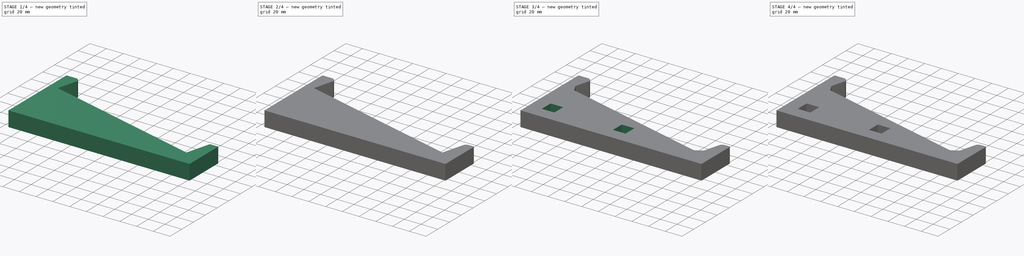
[diagram: build sequence overview — one tinted view per stage of 4, left to right]
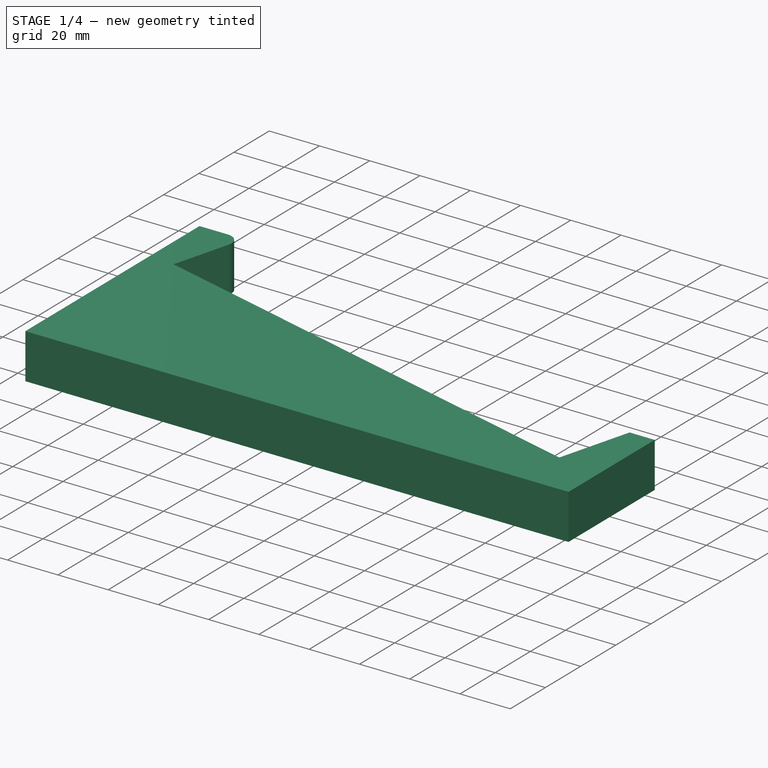
[diagram: stage 1 of 4 — iso view after this stage's code; geometry added in this stage tinted green]
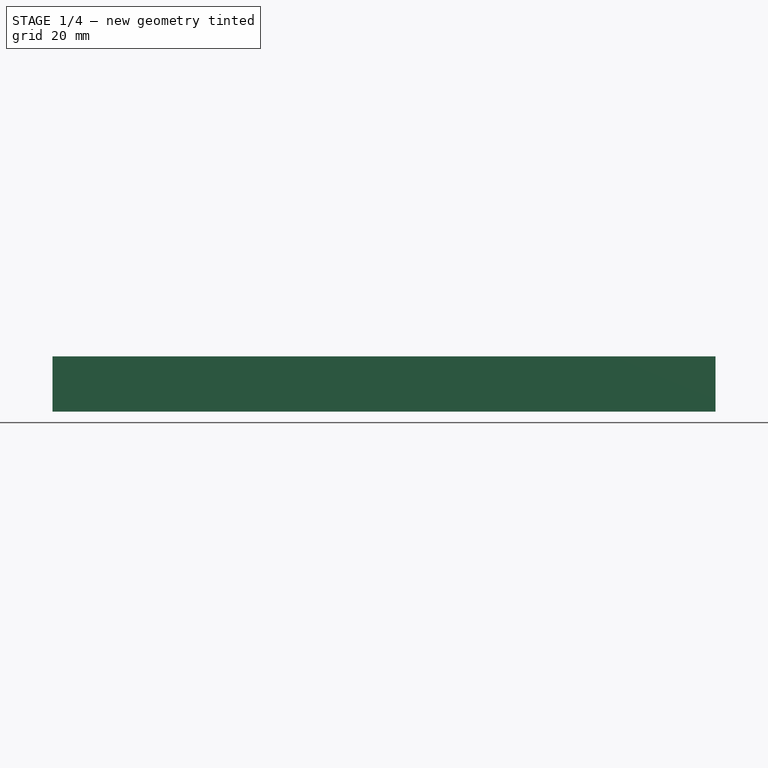
[diagram: stage 1 of 4 — front view after this stage's code; geometry added in this stage tinted green]
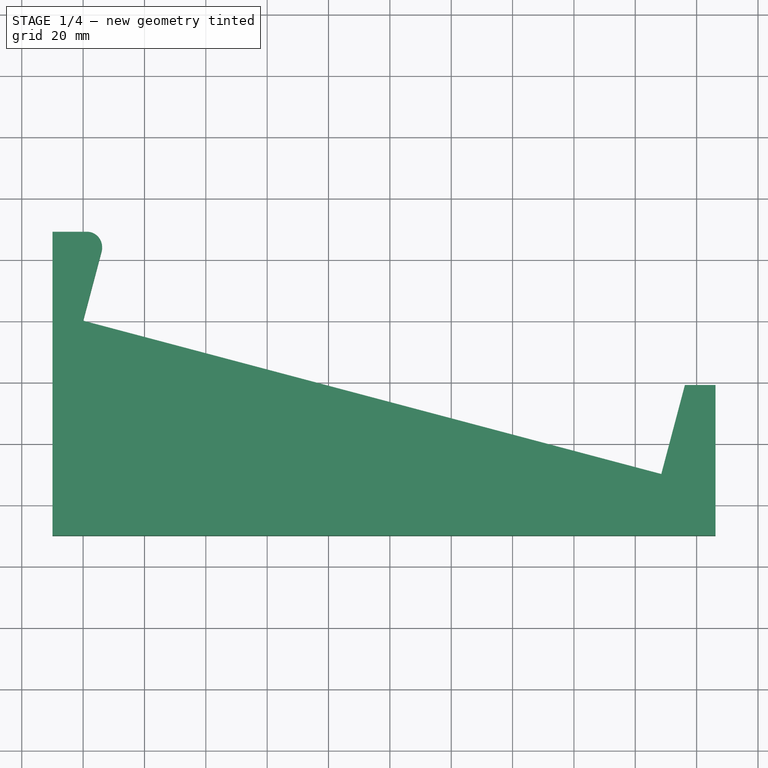
[diagram: stage 1 of 4 — top view after this stage's code; geometry added in this stage tinted green]
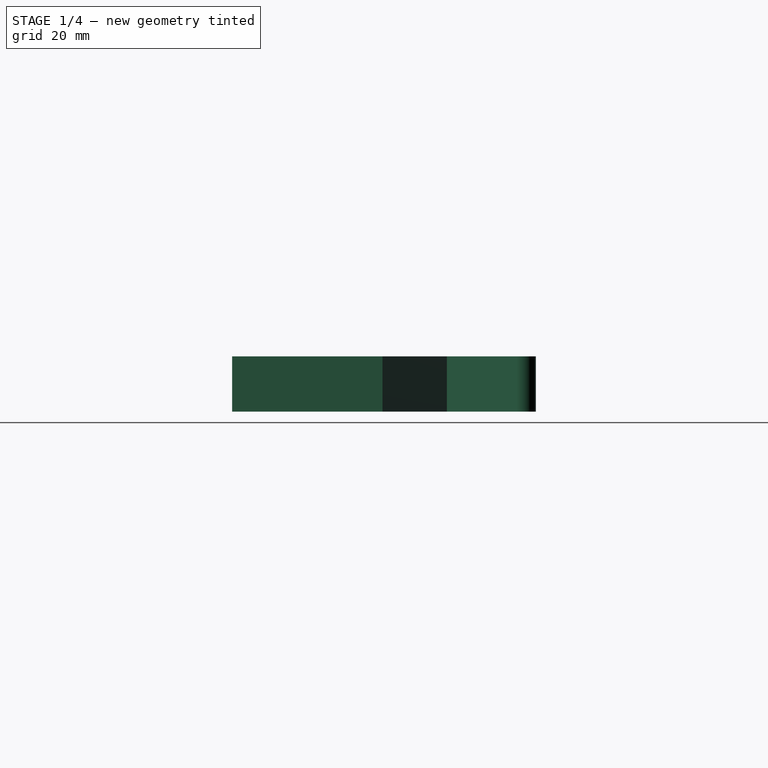
[diagram: stage 1 of 4 — right view after this stage's code; geometry added in this stage tinted green]
FCSTD DOCUMENT  (FreeCAD 0.14R3637 (Git))
Label: seitenwand_rechts
License: CC-BY 3.0
LicenseURL: http://creativecommons.org/licenses/by/3.0/
objects: Sketcher::SketchObject×4, PartDesign::Fillet×4, PartDesign::Pocket×3, PartDesign::Chamfer×2, PartDesign::Pad×1
note: 18 computed .brp shape members not serialized (recipe doc carries the construction recipe); baked Part::Feature solids carry a one-line shape summary decoded from their .brp

FEATURE [Sketcher::SketchObject] Sketch  label="seitensicht"
  sketch-geometry (8):
    g0: LineSegment StartX=206.173 StartY=-21.003 StartZ=0 EndX=196.173 EndY=-21.003 EndZ=0
    g1: LineSegment StartX=196.173 StartY=-21.003 StartZ=0 EndX=188.481 EndY=-50 EndZ=0
    g2: LineSegment StartX=188.481 StartY=-50 StartZ=0 EndX=0 EndY=0 EndZ=0
    g3: LineSegment StartX=0 StartY=0 StartZ=0 EndX=7.69231 EndY=28.997 EndZ=0
    g4: LineSegment StartX=7.69231 StartY=28.997 StartZ=0 EndX=-10 EndY=28.997 EndZ=0
    g5: LineSegment StartX=-10 StartY=28.997 StartZ=0 EndX=-10 EndY=-69.999 EndZ=0
    g6: LineSegment StartX=-10 StartY=-69.999 StartZ=0 EndX=206.173 EndY=-69.999 EndZ=0
    g7: LineSegment StartX=206.173 StartY=-69.999 StartZ=0 EndX=206.173 EndY=-21.003 EndZ=0
  constraints (21):
    c: Coincident(g0,g1)
    c: Coincident(g1,g2)
    c: Coincident(g2,g-1)
    c: Coincident(g2,g3)
    c: Coincident(g3,g4)
    c: Coincident(g4,g5)
    c: Vertical(g5)
    c: Coincident(g5,g6)
    c: Horizontal(g6)
    c: Coincident(g6,g7)
    c: Coincident(g7,g0)
    c: Perpendicular(g7,g6)
    c: Perpendicular(g7,g0)
    c: Perpendicular(g1,g2)
    c: Perpendicular(g4,g5)
    c: Distance(g0) = 10
    c: Distance(g1) = 30
    c: Distance(g3) = 30
    c: Perpendicular(g3,g2)
    c: DistanceY(g-1,g1) = -50
    c: Distance(g2) = 195  'depth'
FEATURE [PartDesign::Pad] Pad
  Length = 18
  Length2 = 100
  Sketch = -> Sketch
  Type = 0
FEATURE [PartDesign::Fillet] Fillet
  Base = -> Pad [Edge11]
  Radius = 5
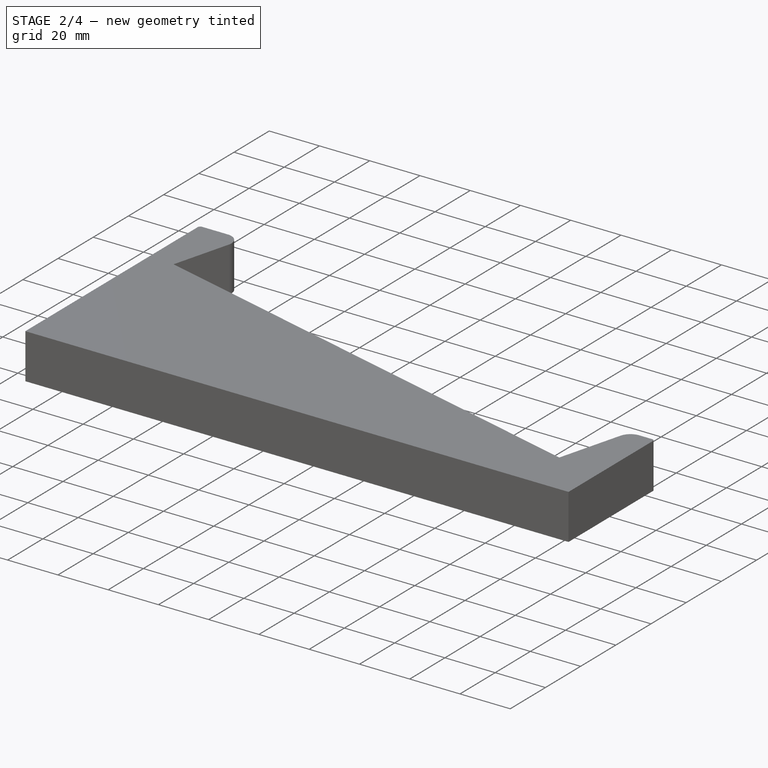
[diagram: stage 2 of 4 — iso view after this stage's code; geometry added in this stage tinted green]
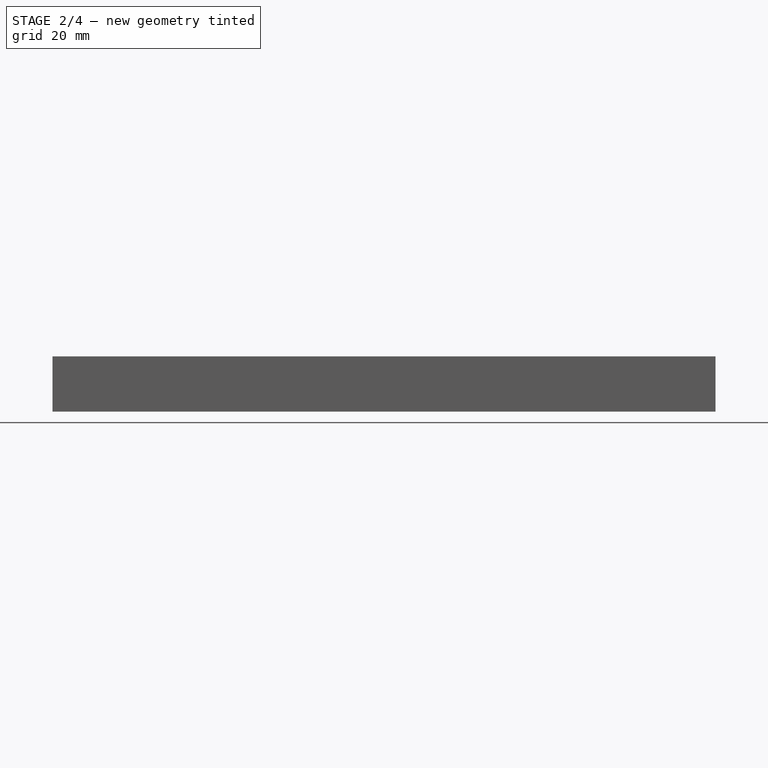
[diagram: stage 2 of 4 — front view after this stage's code; geometry added in this stage tinted green]
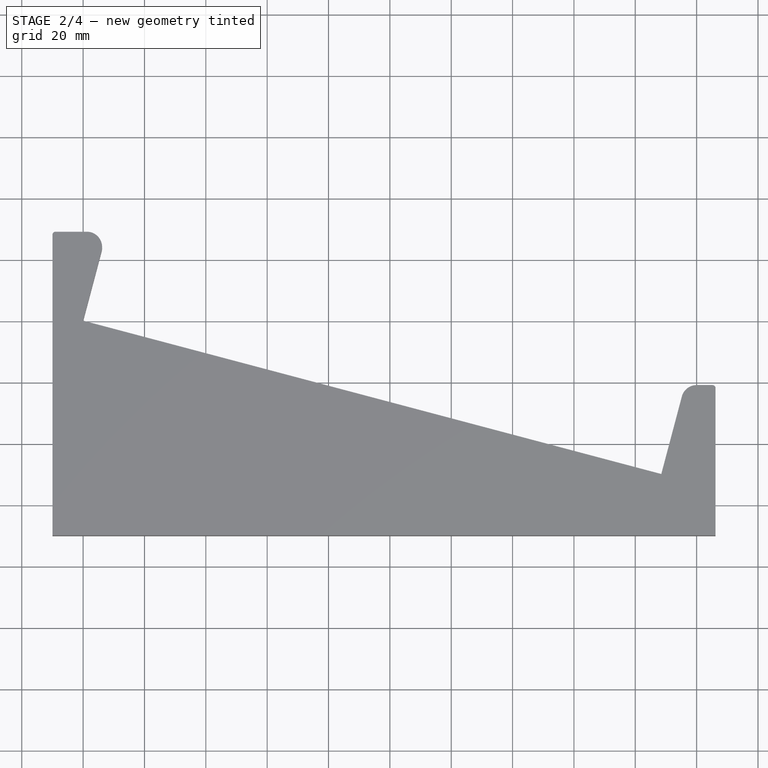
[diagram: stage 2 of 4 — top view after this stage's code; geometry added in this stage tinted green]
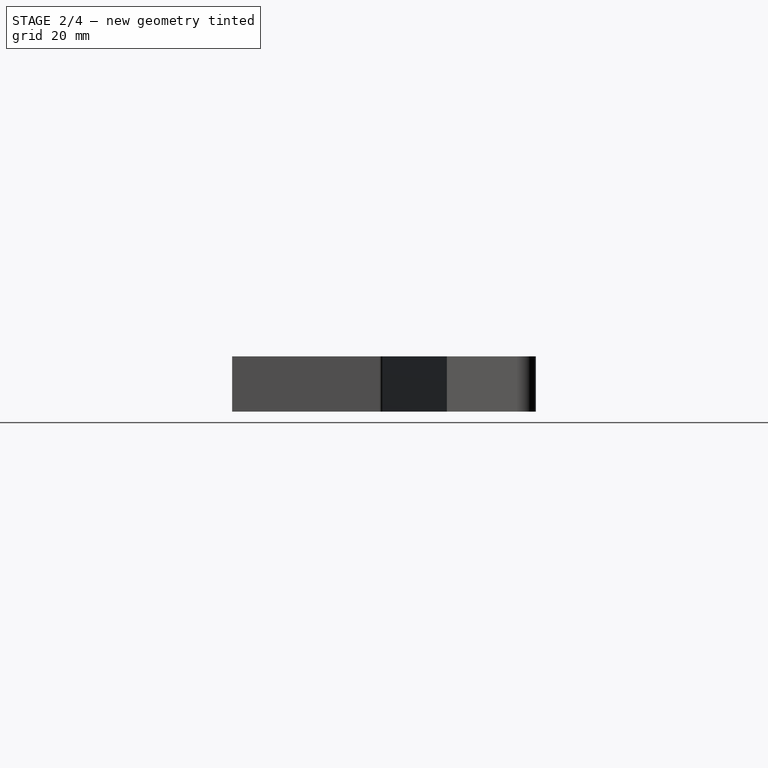
[diagram: stage 2 of 4 — right view after this stage's code; geometry added in this stage tinted green]
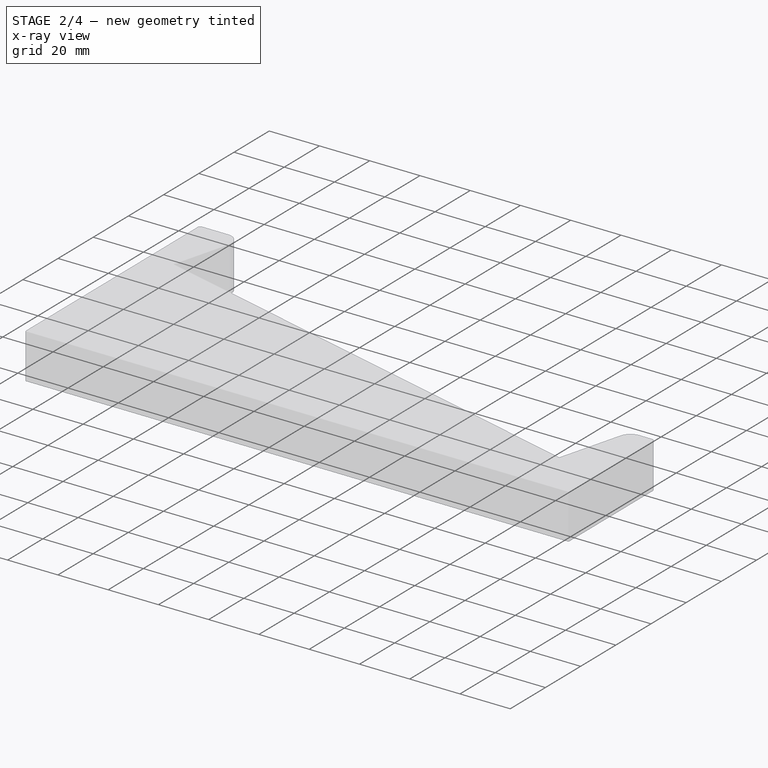
[diagram: stage 2 of 4 — x-ray composite at the iso view; earlier geometry ghosted, this stage's added geometry solid]
FEATURE [PartDesign::Fillet] Fillet001
  Base = -> Fillet [Edge24]
  Radius = 5
FEATURE [PartDesign::Fillet] Fillet002
  Base = -> Fillet001 [Edge18]
  Radius = 1
FEATURE [PartDesign::Fillet] Fillet003  label="Seitenwand"
  Base = -> Fillet002 [Edge27]
  Radius = 1
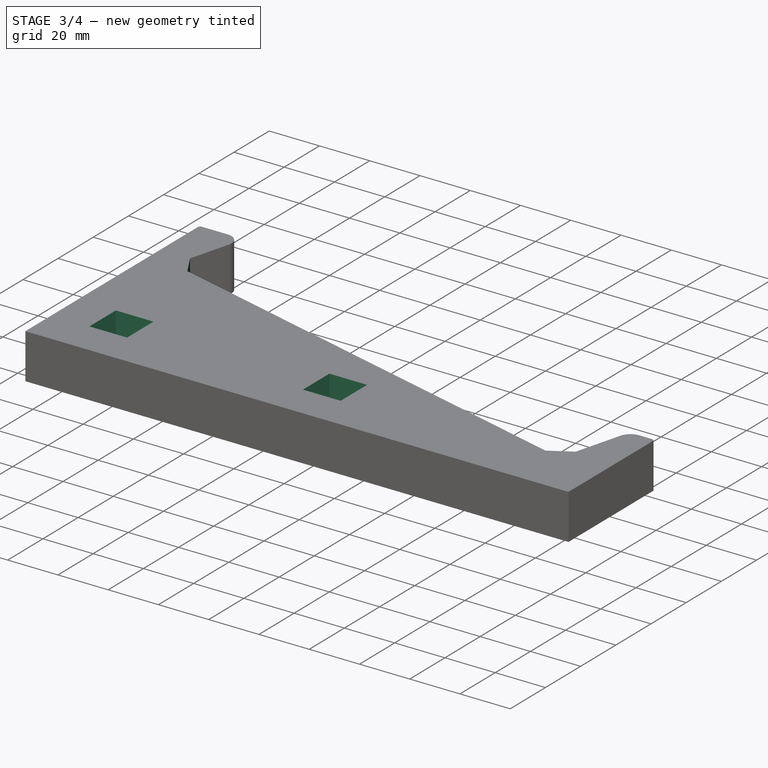
[diagram: stage 3 of 4 — iso view after this stage's code; geometry added in this stage tinted green]
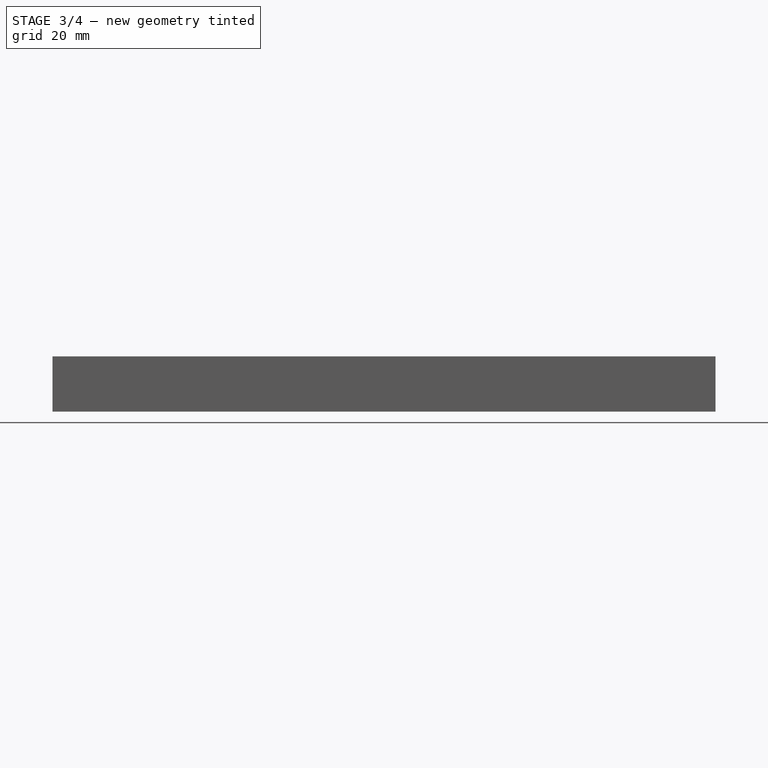
[diagram: stage 3 of 4 — front view after this stage's code; geometry added in this stage tinted green]
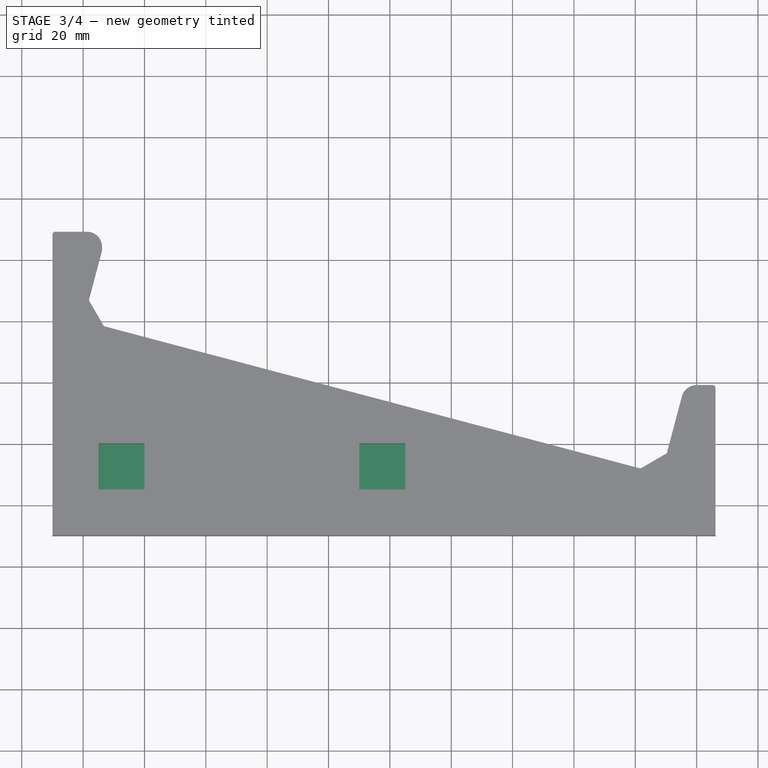
[diagram: stage 3 of 4 — top view after this stage's code; geometry added in this stage tinted green]
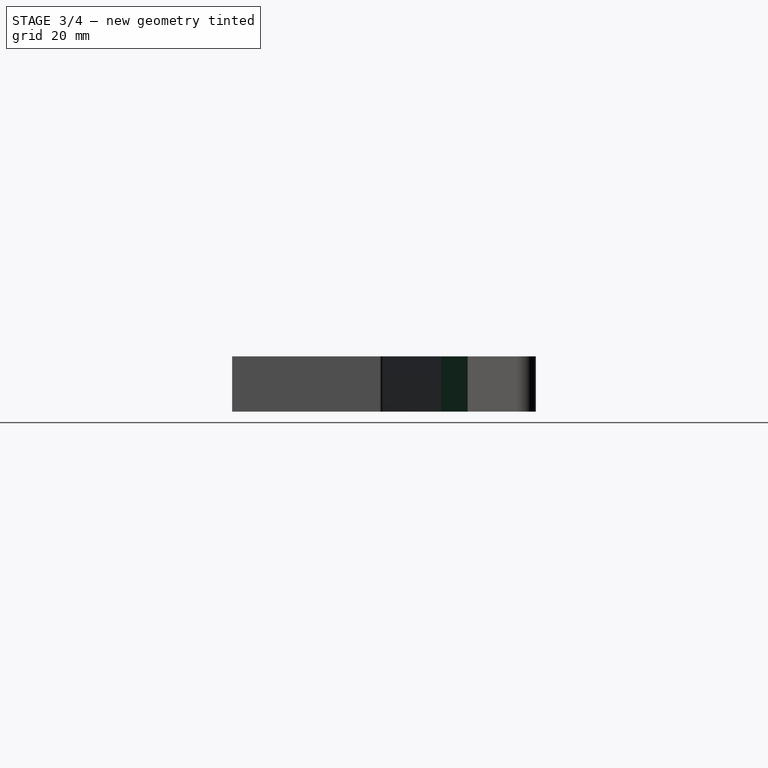
[diagram: stage 3 of 4 — right view after this stage's code; geometry added in this stage tinted green]
FEATURE [PartDesign::Chamfer] Chamfer
  Base = -> Fillet003 [Edge28]
  Size = 7
FEATURE [PartDesign::Chamfer] Chamfer001
  Base = -> Chamfer [Edge21]
  Size = 7
FEATURE [Sketcher::SketchObject] Sketch001  label="ausschnitte"
  ExternalGeometry = -> [Chamfer001]
  Placement = pos=(0,0,18) rot=(0,0,1;0rad)
  Support = -> Chamfer001 [Face16]
  sketch-geometry (9):
    g0: LineSegment StartX=5 StartY=-39.999 StartZ=0 EndX=20 EndY=-39.999 EndZ=0
    g1: LineSegment StartX=20 StartY=-39.999 StartZ=0 EndX=20 EndY=-54.999 EndZ=0
    g2: LineSegment StartX=20 StartY=-54.999 StartZ=0 EndX=5 EndY=-54.999 EndZ=0
    g3: LineSegment StartX=5 StartY=-54.999 StartZ=0 EndX=5 EndY=-39.999 EndZ=0
    g4: LineSegment StartX=90 StartY=-39.999 StartZ=0 EndX=105 EndY=-39.999 EndZ=0
    g5: LineSegment StartX=105 StartY=-39.999 StartZ=0 EndX=105 EndY=-54.999 EndZ=0
    g6: LineSegment StartX=105 StartY=-54.999 StartZ=0 EndX=90 EndY=-54.999 EndZ=0
    g7: LineSegment StartX=90 StartY=-54.999 StartZ=0 EndX=90 EndY=-39.999 EndZ=0
    g8: LineSegment [constr] StartX=20 StartY=-39.999 StartZ=0 EndX=90 EndY=-39.999 EndZ=0
  constraints (26):
    c: Coincident(g0,g1)
    c: Coincident(g1,g2)
    c: Coincident(g2,g3)
    c: Coincident(g3,g0)
    c: Horizontal(g0)
    c: Horizontal(g2)
    c: Vertical(g1)
    c: Vertical(g3)
    c: Distance(g0) = 15
    c: Distance(g1) = 15
    c: Coincident(g4,g5)
    c: Coincident(g5,g6)
    c: Coincident(g6,g7)
    c: Coincident(g7,g4)
    c: Horizontal(g4)
    c: Horizontal(g6)
    c: Vertical(g5)
    c: Vertical(g7)
    c: DistanceX(g4) = 15
    c: Distance(g5) = 15
    c: Horizontal(g8)
    c: Coincident(g8,g0)
    c: Coincident(g8,g4)
    c: DistanceY(g2,g-3) = -15
    c: DistanceX(g-3,g2) = 15
    c: DistanceX(g4,g0) = -70
FEATURE [PartDesign::Pocket] Pocket
  Length = 10
  Sketch = -> Sketch001
  Type = 0
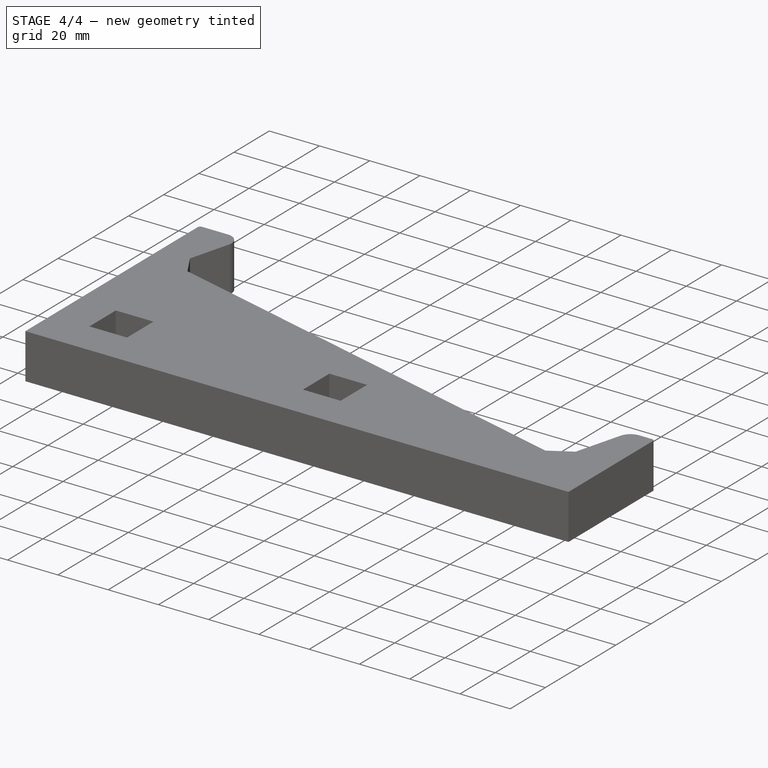
[diagram: stage 4 of 4 — iso view after this stage's code; geometry added in this stage tinted green]
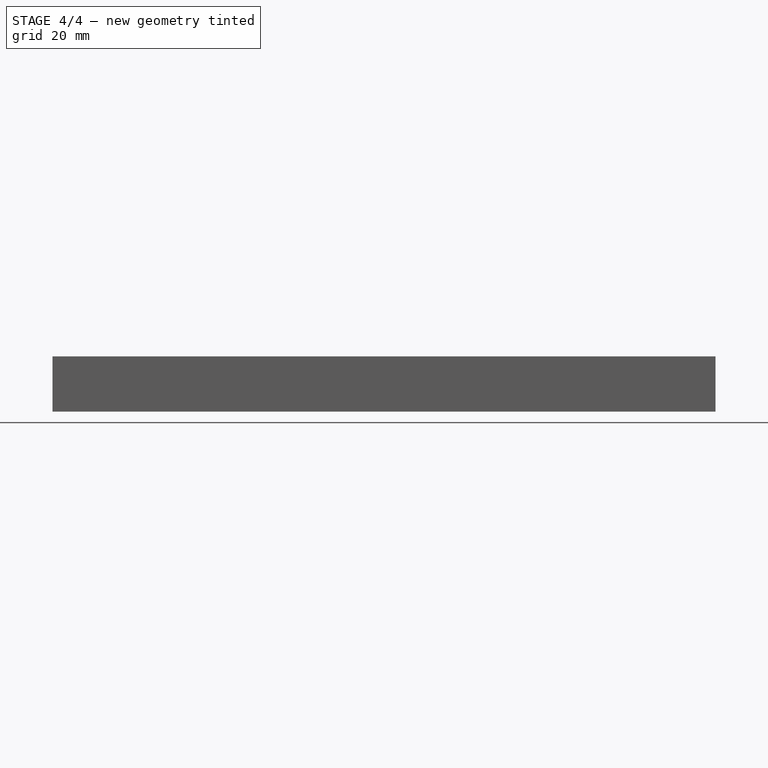
[diagram: stage 4 of 4 — front view after this stage's code; geometry added in this stage tinted green]
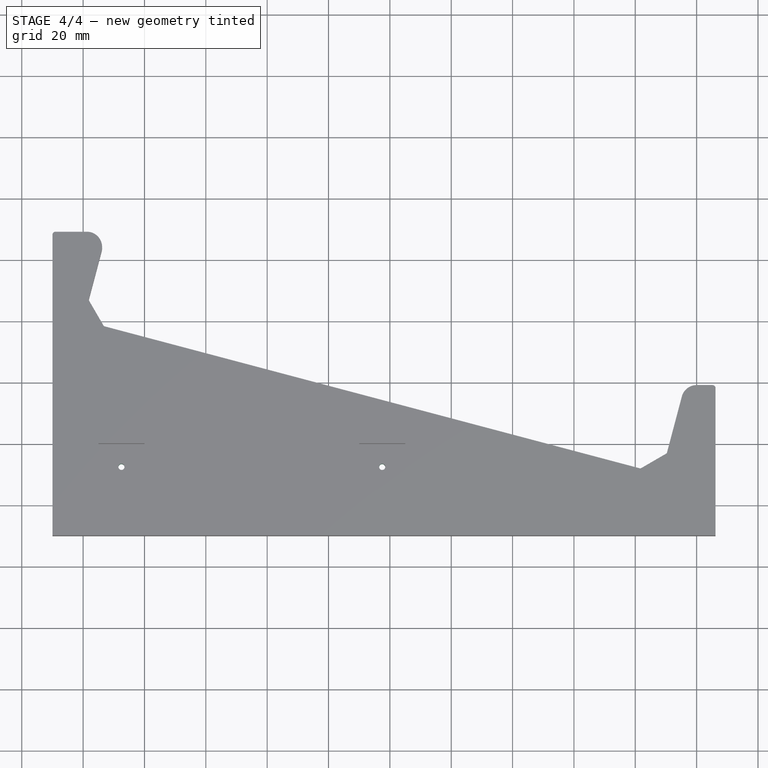
[diagram: stage 4 of 4 — top view after this stage's code; geometry added in this stage tinted green]
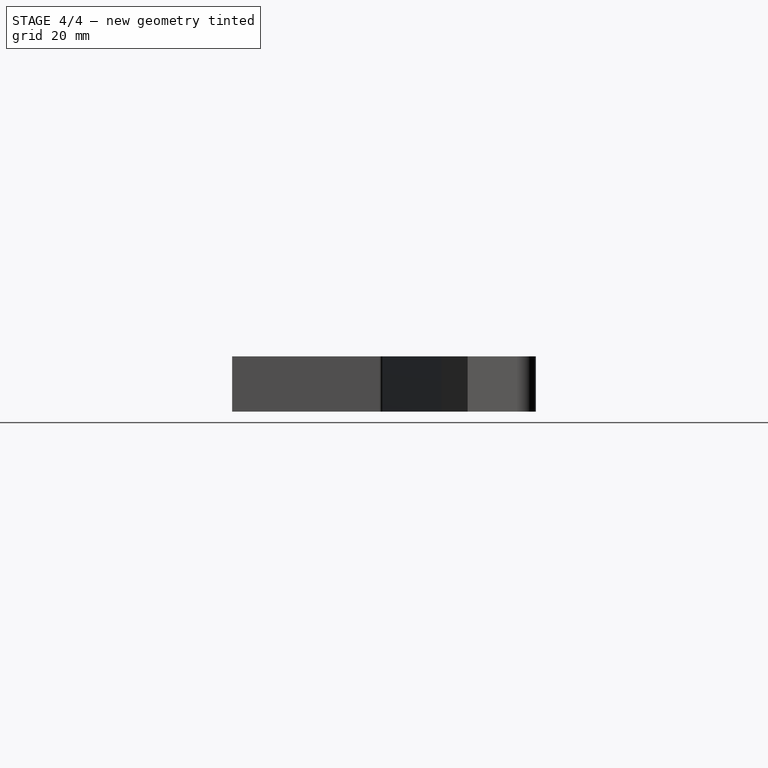
[diagram: stage 4 of 4 — right view after this stage's code; geometry added in this stage tinted green]
FEATURE [Sketcher::SketchObject] Sketch002  label="loch_hinten"
  Placement = pos=(0,0,8) rot=(0,0,1;0rad)
  Support = -> Pocket [Face26]
  sketch-geometry (3):
    g0: LineSegment [constr] StartX=5 StartY=-54.999 StartZ=0 EndX=12.5 EndY=-47.499 EndZ=0
    g1: LineSegment [constr] StartX=20 StartY=-39.999 StartZ=0 EndX=12.5 EndY=-47.499 EndZ=0
    g2: Circle CenterX=12.5 CenterY=-47.499 CenterZ=0 NormalX=0 NormalY=0 NormalZ=1 Radius=1
  constraints (5):
    c: Coincident(g1,g0)
    c: Coincident(g2,g0)
    c: Radius(g2) = 1
    c: Parallel(g0,g1)
    c: Equal(g1,g0)
FEATURE [PartDesign::Pocket] Pocket001
  Length = 8
  Sketch = -> Sketch002
  Type = 0
FEATURE [Sketcher::SketchObject] Sketch003
  Placement = pos=(0,0,8) rot=(0,0,1;0rad)
  Support = -> Pocket001 [Face27]
  sketch-geometry (3):
    g0: LineSegment [constr] StartX=90 StartY=-54.999 StartZ=0 EndX=97.5 EndY=-47.499 EndZ=0
    g1: LineSegment [constr] StartX=105 StartY=-39.999 StartZ=0 EndX=97.5 EndY=-47.499 EndZ=0
    g2: Circle CenterX=97.5 CenterY=-47.499 CenterZ=0 NormalX=0 NormalY=0 NormalZ=1 Radius=1
  constraints (5):
    c: Coincident(g1,g0)
    c: Parallel(g1,g0)
    c: Equal(g1,g0)
    c: Coincident(g2,g0)
    c: Radius(g2) = 1
FEATURE [PartDesign::Pocket] Pocket002
  Length = 8
  Sketch = -> Sketch003
  Type = 0
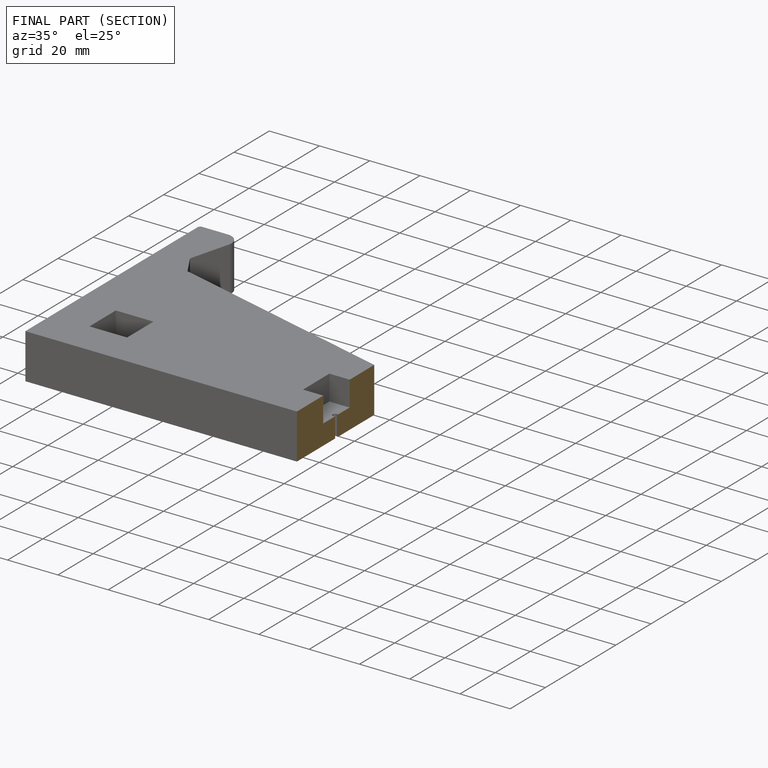
[diagram: finished part — half-section view (interior)]
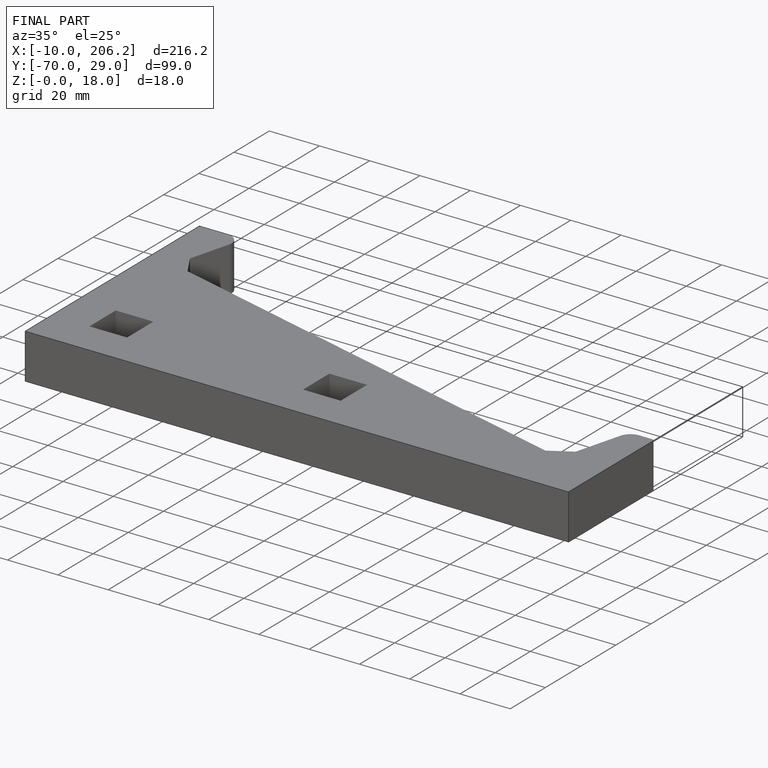
[diagram: finished part — iso view with bounding-box wireframe]
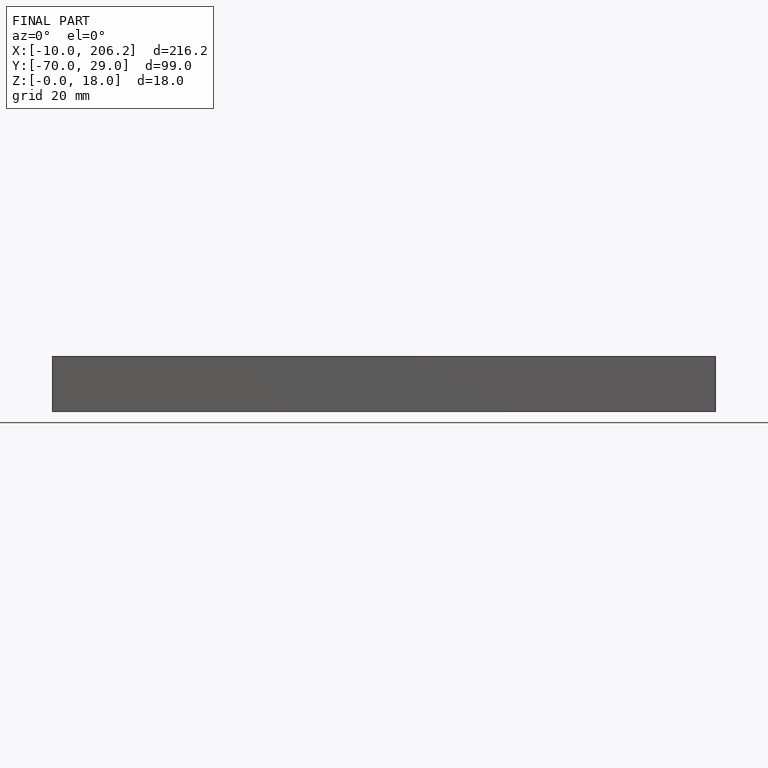
[diagram: finished part — front view with bounding-box wireframe]
